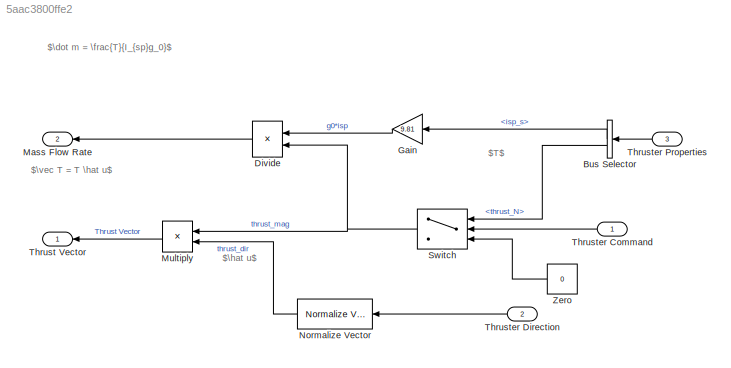
MODEL slx_5aac3800ffe2
KIND model
CONFIG AbsTol = auto
CONFIG EnableMultiTasking = off
CONFIG FixedStep = dt
CONFIG MaxStep = auto
CONFIG MinStep = auto
CONFIG RelTol = 1e-3
CONFIG SampleTimeConstraint = Unconstrained
CONFIG SolverName = ode4
CONFIG StartTime = 0.0
CONFIG StopTime = 10.0
BLOCK [BusSelector] Bus Selector
  OutputSignals = isp_s,thrust_N
BLOCK [Product] Divide
  Inputs = /*
BLOCK [Gain] Gain
  Gain = 9.81
BLOCK [Outport] Mass Flow Rate
  Port = 2
BLOCK [Product] Multiply
  Inputs = **
BLOCK [Reference] Normalize Vector  REF=vrlib/Utilities/Normalize Vector
  SourceBlock = vrlib/Utilities/Normalize Vector
  SourceType = Normalize Vector
BLOCK [Switch] Switch
  Criteria = u2 > Threshold
  InputSameDT = off
  SaturateOnIntegerOverflow = off
BLOCK [Outport] Thrust Vector
  PortDimensions = 3
BLOCK [Inport] Thruster Command
BLOCK [Inport] Thruster Direction
  Port = 2
  PortDimensions = 3
BLOCK [Inport] Thruster Properties
  OutDataTypeStr = Bus: thruster
  Port = 3
BLOCK [Constant] Zero
  OutDataTypeStr = Inherit: Inherit via back propagation
  Value = 0
ANNOTATION (root): $T$
ANNOTATION (root): $\dot m = \frac{T}{I_{sp}g_0}$
ANNOTATION (root): $\hat u$
ANNOTATION (root): $\vec T = T \hat u$
LINE Bus Selector:1 -> Gain:1
LINE Bus Selector:2 -> Switch:1
LINE Divide:1 -> Mass Flow Rate:1
LINE Gain:1 -> Divide:1
LINE Multiply:1 -> Thrust Vector:1
LINE Normalize Vector:1 -> Multiply:2
NET Switch:1 -> Divide:2, Multiply:1
LINE Thruster Command:1 -> Switch:2
LINE Thruster Direction:1 -> Normalize Vector:1
LINE Thruster Properties:1 -> Bus Selector:1
LINE Zero:1 -> Switch:3
note: NET lines group one-source signal fan-out (src -> all destinations, sorted); 1:1 wires keep LINE
